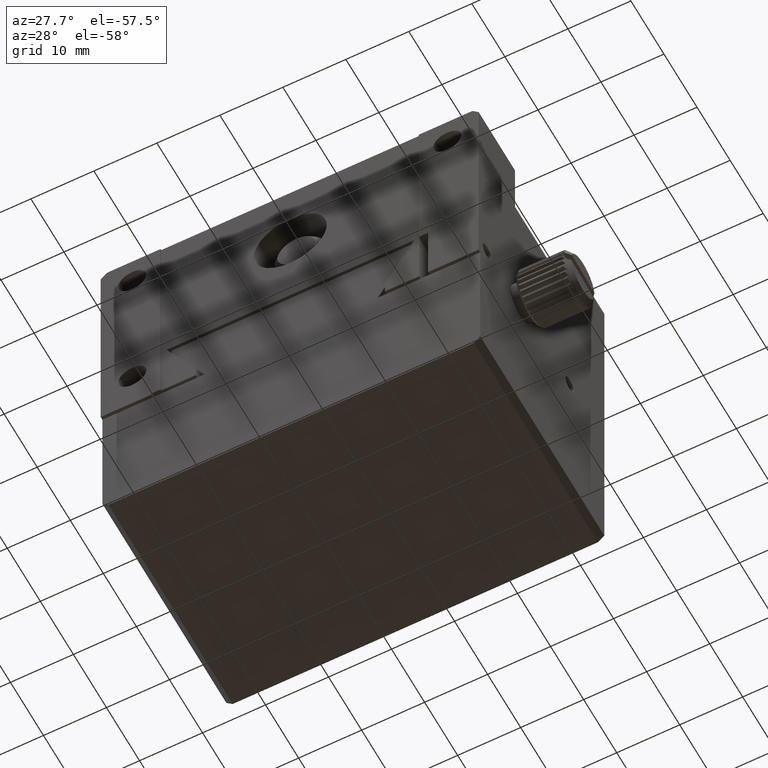
[diagram: clean part render]
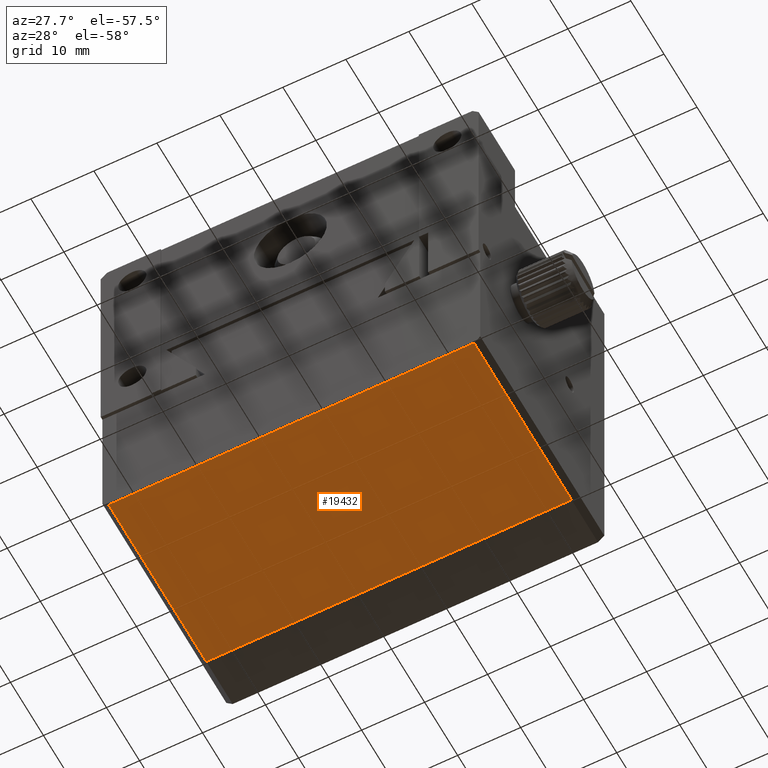
[diagram: same view with one face highlighted and labeled with its STEP entity id]
A machine part, auxiliary view. The second image highlights one B-rep face of the part: STEP entity #19432.
In plain terms, the highlighted planar face has unit normal (0, 0, 1).
Its self-contained STEP definition (entity closure, byte-faithful):
#1151 = VECTOR ( 'NONE', #2468, 1000.000000000000000 ) ;
#1172 = CARTESIAN_POINT ( 'NONE',  ( 5.522127962033280824, 11.09151725221545703, 35.80549511013755648 ) ) ;
#1923 = CARTESIAN_POINT ( 'NONE',  ( 64.52212796203323819, 40.59151725221547480, 35.80549511013715147 ) ) ;
#2059 = CARTESIAN_POINT ( 'NONE',  ( 64.52212796203323819, 11.09151725221546769, 35.80549511013715147 ) ) ;
#2468 = DIRECTION ( 'NONE',  ( 1.000000000000000000, 0.000000000000000000, -6.982962677686266711E-15 ) ) ;
#2510 = EDGE_LOOP ( 'NONE', ( #18364, #21271, #9451, #6122 ) ) ;
#2620 = DIRECTION ( 'NONE',  ( -1.000000000000000000, -0.000000000000000000, 6.982962677686266711E-15 ) ) ;
#3261 = VECTOR ( 'NONE', #2620, 1000.000000000000000 ) ;
#4489 = CARTESIAN_POINT ( 'NONE',  ( 5.522127962033280824, 40.59151725221547480, 35.80549511013755648 ) ) ;
#5387 = VERTEX_POINT ( 'NONE', #24366 ) ;
#6122 = ORIENTED_EDGE ( 'NONE', *, *, #12083, .F. ) ;
#6517 = LINE ( 'NONE', #2059, #1151 ) ;
#7582 = DIRECTION ( 'NONE',  ( -0.000000000000000000, -1.000000000000000000, -0.000000000000000000 ) ) ;
#9221 = CARTESIAN_POINT ( 'NONE',  ( 63.52212796203323109, 40.59151725221547480, 35.80549511013715858 ) ) ;
#9451 = ORIENTED_EDGE ( 'NONE', *, *, #14104, .F. ) ;
#10167 = DIRECTION ( 'NONE',  ( 6.982962677686266711E-15, 0.000000000000000000, 1.000000000000000000 ) ) ;
#11124 = LINE ( 'NONE', #15034, #3261 ) ;
#12083 = EDGE_CURVE ( 'NONE', #20274, #5387, #6517, .T. ) ;
#14078 = DIRECTION ( 'NONE',  ( 1.000000000000000000, 0.000000000000000000, -6.982962677686266711E-15 ) ) ;
#14104 = EDGE_CURVE ( 'NONE', #5387, #19550, #15686, .T. ) ;
#15034 = CARTESIAN_POINT ( 'NONE',  ( 64.52212796203323819, 40.59151725221547480, 35.80549511013715147 ) ) ;
#15529 = LINE ( 'NONE', #17940, #16656 ) ;
#15686 = LINE ( 'NONE', #25831, #24001 ) ;
#16656 = VECTOR ( 'NONE', #7582, 1000.000000000000000 ) ;
#17940 = CARTESIAN_POINT ( 'NONE',  ( 5.522127962033284376, 40.59151725221547480, 35.80549511013755648 ) ) ;
#18364 = ORIENTED_EDGE ( 'NONE', *, *, #25474, .F. ) ;
#19432 = ADVANCED_FACE ( 'NONE', ( #20013 ), #20559, .F. ) ;
#19550 = VERTEX_POINT ( 'NONE', #9221 ) ;
#20013 = FACE_OUTER_BOUND ( 'NONE', #2510, .T. ) ;
#20274 = VERTEX_POINT ( 'NONE', #1172 ) ;
#20559 = PLANE ( 'NONE',  #26003 ) ;
#21271 = ORIENTED_EDGE ( 'NONE', *, *, #23374, .F. ) ;
#21429 = VERTEX_POINT ( 'NONE', #4489 ) ;
#23374 = EDGE_CURVE ( 'NONE', #19550, #21429, #11124, .T. ) ;
#23924 = DIRECTION ( 'NONE',  ( 0.000000000000000000, 1.000000000000000000, 0.000000000000000000 ) ) ;
#24001 = VECTOR ( 'NONE', #23924, 1000.000000000000000 ) ;
#24366 = CARTESIAN_POINT ( 'NONE',  ( 63.52212796203324530, 11.09151725221546059, 35.80549511013715858 ) ) ;
#25474 = EDGE_CURVE ( 'NONE', #21429, #20274, #15529, .T. ) ;
#25831 = CARTESIAN_POINT ( 'NONE',  ( 63.52212796203324530, 40.59151725221547480, 35.80549511013715858 ) ) ;
#26003 = AXIS2_PLACEMENT_3D ( 'NONE', #1923, #10167, #14078 ) ;